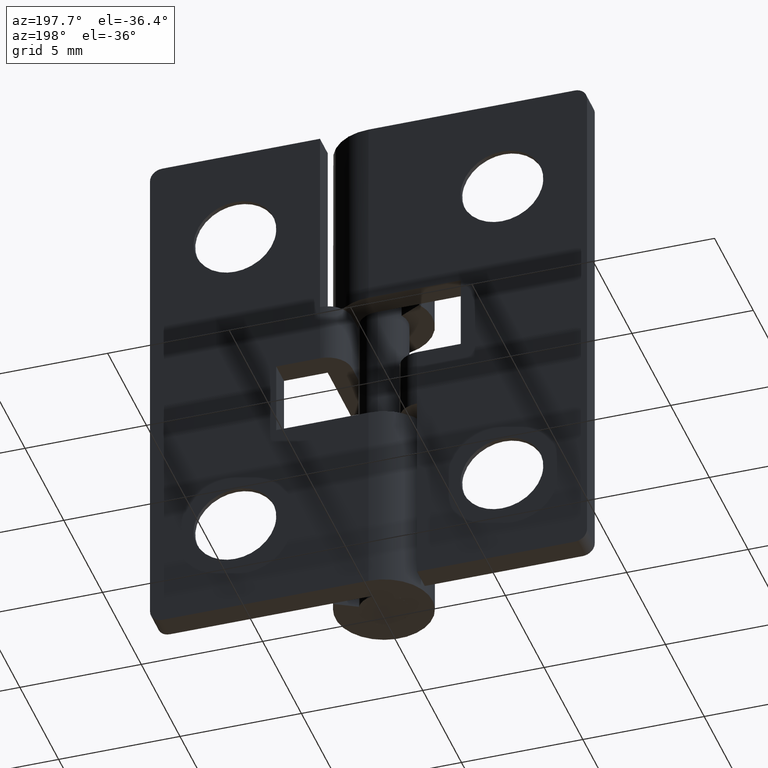
[diagram: clean part render]
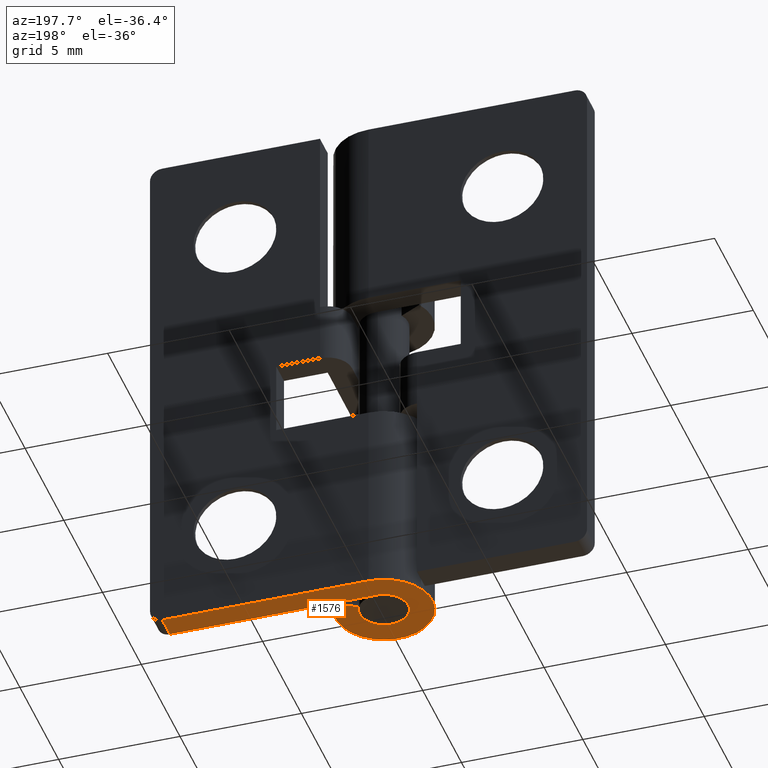
[diagram: same view with one face highlighted and labeled with its STEP entity id]
A machine part, auxiliary view. The second image highlights one B-rep face of the part: STEP entity #1576.
In plain terms, the highlighted face is a freeform B-spline surface patch.
Its self-contained STEP definition (entity closure, byte-faithful):
#1405=CARTESIAN_POINT('',(8.500000000000000,2.0,0.0));
#1406=VERTEX_POINT('',#1405);
#1427=CARTESIAN_POINT('',(8.500000000000000,1.0,0.0));
#1428=VERTEX_POINT('',#1427);
#1442=CARTESIAN_POINT('',(8.500000000000000,2.0,0.0));
#1443=CARTESIAN_POINT('',(8.500000000000000,1.0,0.0));
#1444=QUASI_UNIFORM_CURVE('',1,(#1442,#1443),.UNSPECIFIED.,.F.,.U.);
#1445=EDGE_CURVE('',#1406,#1428,#1444,.T.);
#1478=CARTESIAN_POINT('',(-2.524469684371837,2.199798965628354,0.0));
#1479=CARTESIAN_POINT('',(9.024475009363171,2.199798965628354,0.0));
#1480=CARTESIAN_POINT('',(-2.524469684371837,-2.199778519967014,0.0));
#1481=CARTESIAN_POINT('',(9.024475009363171,-2.199778519967014,0.0));
#1482=B_SPLINE_SURFACE_WITH_KNOTS('',1,1,((#1478,#1480),(#1479,#1481)),.UNSPECIFIED.,.F.,.F.,.U.,(2,2),(2,2),(0.0,11.548944693735010),(0.0,4.399577485595367),.UNSPECIFIED.);
#1483=CARTESIAN_POINT('',(-3.673819E-016,2.0,0.0));
#1484=VERTEX_POINT('',#1483);
#1485=CARTESIAN_POINT('',(-3.673819E-016,2.0,0.0));
#1486=CARTESIAN_POINT('',(8.500000000000000,2.0,0.0));
#1487=QUASI_UNIFORM_CURVE('',1,(#1485,#1486),.UNSPECIFIED.,.F.,.U.);
#1488=EDGE_CURVE('',#1484,#1406,#1487,.T.);
#1489=ORIENTED_EDGE('',*,*,#1488,.T.);
#1490=ORIENTED_EDGE('',*,*,#1445,.T.);
#1491=CARTESIAN_POINT('',(0.0,1.0,0.0));
#1492=VERTEX_POINT('',#1491);
#1493=CARTESIAN_POINT('',(8.500000000000000,1.0,0.0));
#1494=CARTESIAN_POINT('',(0.0,1.0,0.0));
#1495=QUASI_UNIFORM_CURVE('',1,(#1493,#1494),.UNSPECIFIED.,.F.,.U.);
#1496=EDGE_CURVE('',#1428,#1492,#1495,.T.);
#1497=ORIENTED_EDGE('',*,*,#1496,.T.);
#1498=CARTESIAN_POINT('',(0.879985795339901,0.475000000000000,0.0));
#1499=VERTEX_POINT('',#1498);
#1500=CARTESIAN_POINT('',(0.0,1.0,0.0));
#1501=CARTESIAN_POINT('',(-0.081364021039185,1.000022199859683,0.0));
#1502=CARTESIAN_POINT('',(-0.213569512891465,0.983767965994972,0.0));
#1503=CARTESIAN_POINT('',(-0.407194862410447,0.919522851818481,0.0));
#1504=CARTESIAN_POINT('',(-0.601345741456837,0.812633123629572,0.0));
#1505=CARTESIAN_POINT('',(-0.790567837932637,0.633627052681976,0.0));
#1506=CARTESIAN_POINT('',(-0.915734635160548,0.421579011592125,0.0));
#1507=CARTESIAN_POINT('',(-0.976812724728094,0.233901873845584,0.0));
#1508=CARTESIAN_POINT('',(-1.003072626819028,0.062502941586745,0.0));
#1509=CARTESIAN_POINT('',(-0.999587515731351,-0.104359250172095,0.0));
#1510=CARTESIAN_POINT('',(-0.964224308629496,-0.284532245519220,0.0));
#1511=CARTESIAN_POINT('',(-0.904802734528935,-0.436931397000334,0.0));
#1512=CARTESIAN_POINT('',(-0.815766187776774,-0.585588718890255,0.0));
#1513=CARTESIAN_POINT('',(-0.704283477086803,-0.718700499535103,0.0));
#1514=CARTESIAN_POINT('',(-0.563876252462157,-0.832299224032266,0.0));
#1515=CARTESIAN_POINT('',(-0.373162257942074,-0.937098840852191,0.0));
#1516=CARTESIAN_POINT('',(-0.165586617795901,-0.996473463008037,0.0));
#1517=CARTESIAN_POINT('',(0.052285266958068,-1.003939406658883,0.0));
#1518=CARTESIAN_POINT('',(0.234076788420785,-0.977675342157699,0.0));
#1519=CARTESIAN_POINT('',(0.431215368715456,-0.912037273064493,0.0));
#1520=CARTESIAN_POINT('',(0.609021999793950,-0.802945097847997,0.0));
#1521=CARTESIAN_POINT('',(0.751468048181239,-0.666447829464042,0.0));
#1522=CARTESIAN_POINT('',(0.857688388619310,-0.525027660435976,0.0));
#1523=CARTESIAN_POINT('',(0.941081800053976,-0.357170605505717,0.0));
#1524=CARTESIAN_POINT('',(0.991505435302712,-0.169685274339325,0.0));
#1525=CARTESIAN_POINT('',(1.006736194140365,0.034016498379211,0.0));
#1526=CARTESIAN_POINT('',(0.977111758198594,0.253902695578361,0.0));
#1527=CARTESIAN_POINT('',(0.918652058637396,0.403408345797615,0.0));
#1528=CARTESIAN_POINT('',(0.879985795339901,0.475000000000000,0.0));
#1529=B_SPLINE_CURVE_WITH_KNOTS('',3,(#1500,#1501,#1502,#1503,#1504,#1505,#1506,#1507,#1508,#1509,#1510,#1511,#1512,#1513,#1514,#1515,#1516,#1517,#1518,#1519,#1520,#1521,#1522,#1523,#1524,#1525,#1526,#1527,#1528),.UNSPECIFIED.,.F.,.U.,(4,1,1,1,1,1,1,1,1,1,1,1,1,1,1,1,1,1,1,1,1,1,1,1,1,1,4),(0.000000120189096,0.244086064711588,0.396653501889610,0.610239120422507,0.905192610833587,1.169635048645149,1.342517047923346,1.495076171935345,1.688323196155090,1.840887879059366,2.044302299977677,2.176525491331883,2.359593221518767,2.563014682553845,2.715561394192029,3.010508507563661,3.203756229573297,3.366487687404885,3.559734935926963,3.824178927163110,3.986884311325149,4.149626180971704,4.353035550284749,4.546282862554583,4.729356509312629,4.963280893528370,5.207375455252492),.UNSPECIFIED.);
#1530=EDGE_CURVE('',#1492,#1499,#1529,.T.);
#1531=ORIENTED_EDGE('',*,*,#1530,.T.);
#1532=CARTESIAN_POINT('',(1.759971590679800,0.950000000000000,0.0));
#1533=VERTEX_POINT('',#1532);
#1534=CARTESIAN_POINT('',(0.879985795339901,0.475000000000000,0.0));
#1535=CARTESIAN_POINT('',(1.759971590679800,0.950000000000000,0.0));
#1536=QUASI_UNIFORM_CURVE('',1,(#1534,#1535),.UNSPECIFIED.,.F.,.U.);
#1537=EDGE_CURVE('',#1499,#1533,#1536,.T.);
#1538=ORIENTED_EDGE('',*,*,#1537,.T.);
#1539=CARTESIAN_POINT('',(-3.673819E-016,2.0,0.0));
#1540=CARTESIAN_POINT('',(-0.176297694052783,2.000061311463601,0.0));
#1541=CARTESIAN_POINT('',(-0.461037335362394,1.962084959389846,0.0));
#1542=CARTESIAN_POINT('',(-0.845049647792724,1.823730590660669,0.0));
#1543=CARTESIAN_POINT('',(-1.182121859343004,1.631347137122863,0.0));
#1544=CARTESIAN_POINT('',(-1.488123481554920,1.359045526999472,0.0));
#1545=CARTESIAN_POINT('',(-1.708839606520650,1.056285978352647,0.0));
#1546=CARTESIAN_POINT('',(-1.849635300342385,0.777213993215743,0.0));
#1547=CARTESIAN_POINT('',(-1.957587855522134,0.462109411047096,0.0));
#1548=CARTESIAN_POINT('',(-2.006529247851474,0.131396059867999,0.0));
#1549=CARTESIAN_POINT('',(-1.995736676975400,-0.215000594874696,0.0));
#1550=CARTESIAN_POINT('',(-1.936551581394523,-0.543048604152241,0.0));
#1551=CARTESIAN_POINT('',(-1.806349930733979,-0.887289750098281,0.0));
#1552=CARTESIAN_POINT('',(-1.619803601182844,-1.188227016172008,0.0));
#1553=CARTESIAN_POINT('',(-1.414182475045684,-1.423803362492273,0.0));
#1554=CARTESIAN_POINT('',(-1.202975658758216,-1.605638621406220,0.0));
#1555=CARTESIAN_POINT('',(-0.951831393235173,-1.767867875540936,0.0));
#1556=CARTESIAN_POINT('',(-0.684735877520018,-1.887450142222621,0.0));
#1557=CARTESIAN_POINT('',(-0.330926617668449,-1.984789049773115,0.0));
#1558=CARTESIAN_POINT('',(0.036756209808135,-2.014356186488694,0.0));
#1559=CARTESIAN_POINT('',(0.455260232365734,-1.960361721679222,0.0));
#1560=CARTESIAN_POINT('',(0.785219400570856,-1.850474503547583,0.0));
#1561=CARTESIAN_POINT('',(1.078305920347266,-1.692457211547368,0.0));
#1562=CARTESIAN_POINT('',(1.329810093151707,-1.506467825497313,0.0));
#1563=CARTESIAN_POINT('',(1.546979030434672,-1.280785484503950,0.0));
#1564=CARTESIAN_POINT('',(1.752885457394322,-0.985298289443018,0.0));
#1565=CARTESIAN_POINT('',(1.906662003991469,-0.650488164496430,0.0));
#1566=CARTESIAN_POINT('',(1.998179292291449,-0.245147316448007,0.0));
#1567=CARTESIAN_POINT('',(2.007896582273536,0.163678401962488,0.0));
#1568=CARTESIAN_POINT('',(1.931458341576982,0.572562143964446,0.0));
#1569=CARTESIAN_POINT('',(1.824400023507684,0.830677392571345,0.0));
#1570=CARTESIAN_POINT('',(1.759971590679800,0.950000000000000,0.0));
#1571=B_SPLINE_CURVE_WITH_KNOTS('',3,(#1539,#1540,#1541,#1542,#1543,#1544,#1545,#1546,#1547,#1548,#1549,#1550,#1551,#1552,#1553,#1554,#1555,#1556,#1557,#1558,#1559,#1560,#1561,#1562,#1563,#1564,#1565,#1566,#1567,#1568,#1569,#1570),.UNSPECIFIED.,.F.,.U.,(4,1,1,1,1,1,1,1,1,1,1,1,1,1,1,1,1,1,1,1,1,1,1,1,1,1,1,1,1,4),(0.000000080695298,0.528872701166225,0.854329684108627,1.220478086235120,1.688329942391292,2.074815206121070,2.339258348229201,2.624020071267523,3.071528065798612,3.335974195337928,3.661433201948872,4.068262807226907,4.434407267220441,4.719193816362665,5.003967386804961,5.268387053664615,5.614191296075149,5.878635348749571,6.366828470629324,6.712634955583829,7.139803659769669,7.404247712667933,7.709359179078969,8.075494089157484,8.339935518364714,8.787445647712234,9.173931741458311,9.580758329158565,10.007935316738861,10.414750910477920),.UNSPECIFIED.);
#1572=EDGE_CURVE('',#1484,#1533,#1571,.T.);
#1573=ORIENTED_EDGE('',*,*,#1572,.F.);
#1574=EDGE_LOOP('',(#1489,#1490,#1497,#1531,#1538,#1573));
#1575=FACE_OUTER_BOUND('',#1574,.T.);
#1576=ADVANCED_FACE('',(#1575),#1482,.T.);